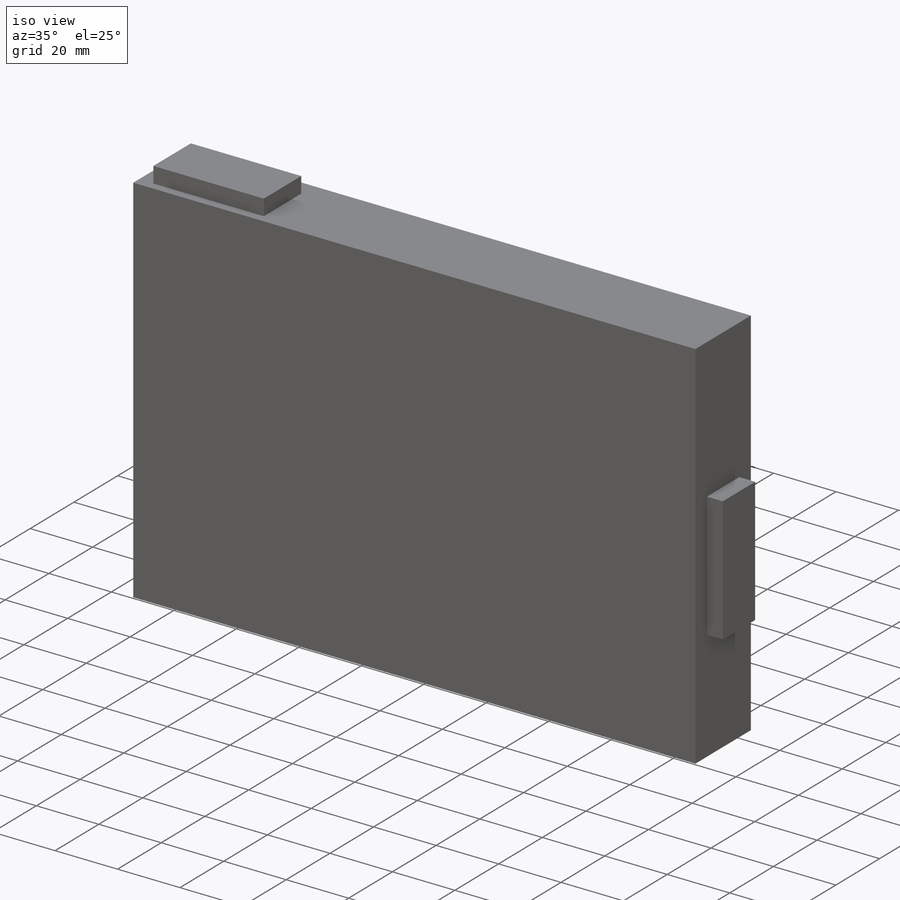
[diagram: iso view]
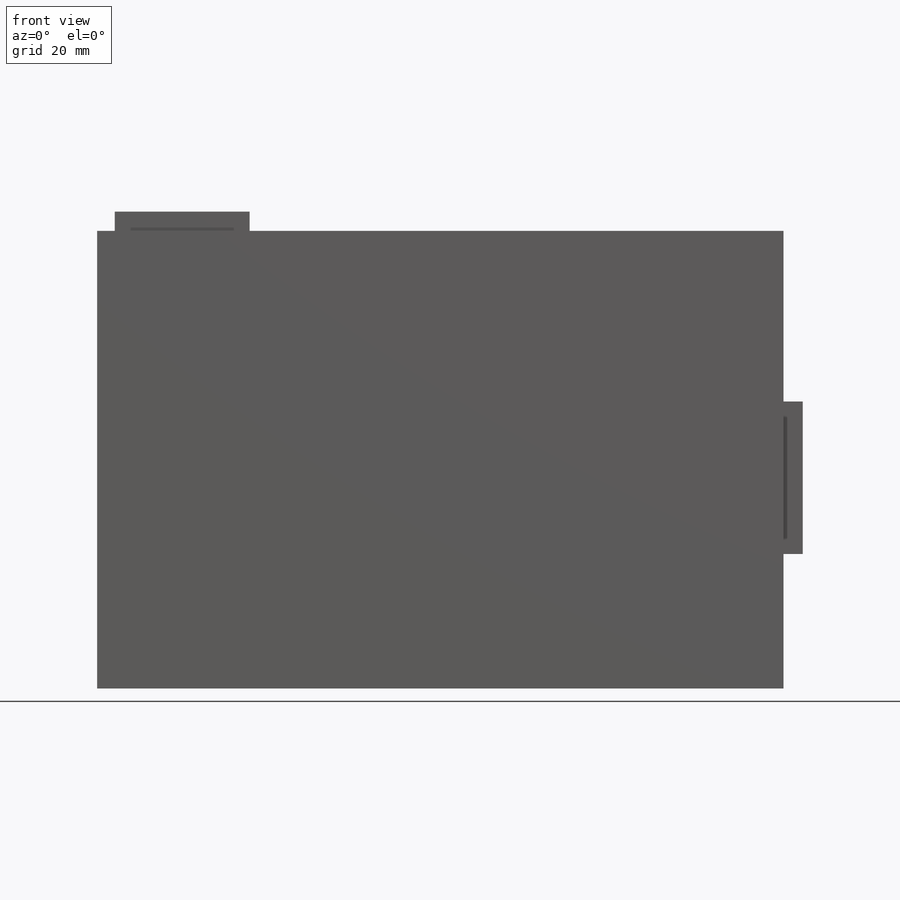
[diagram: front view]
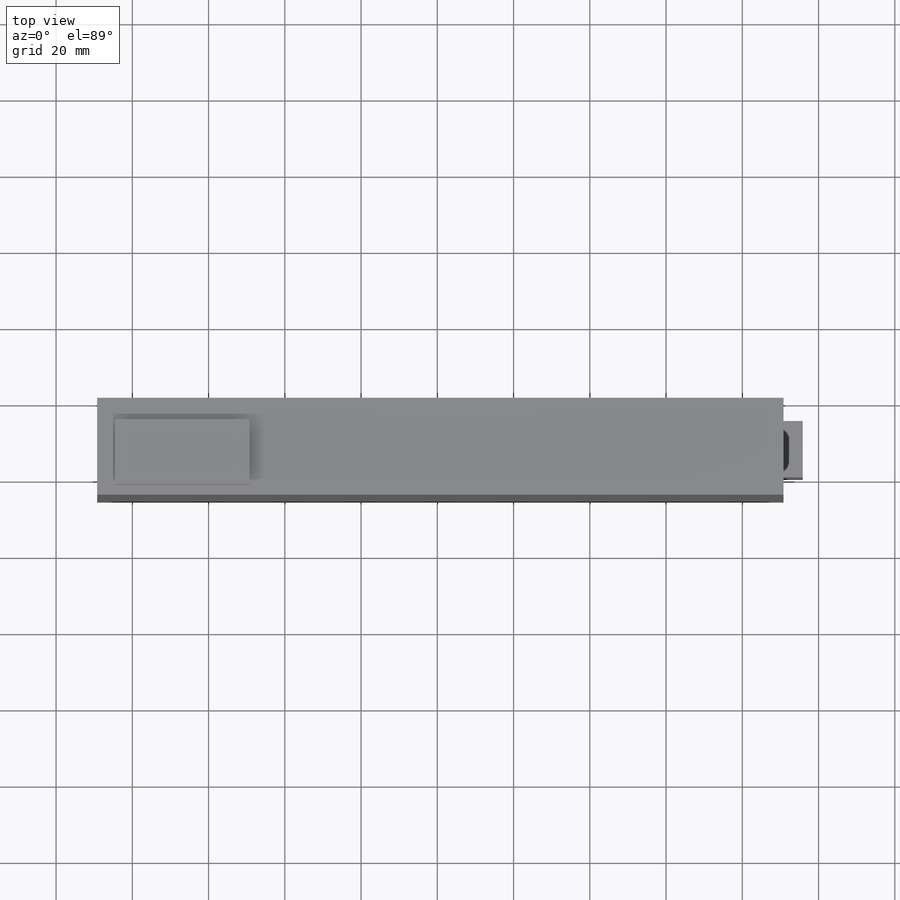
[diagram: top view]
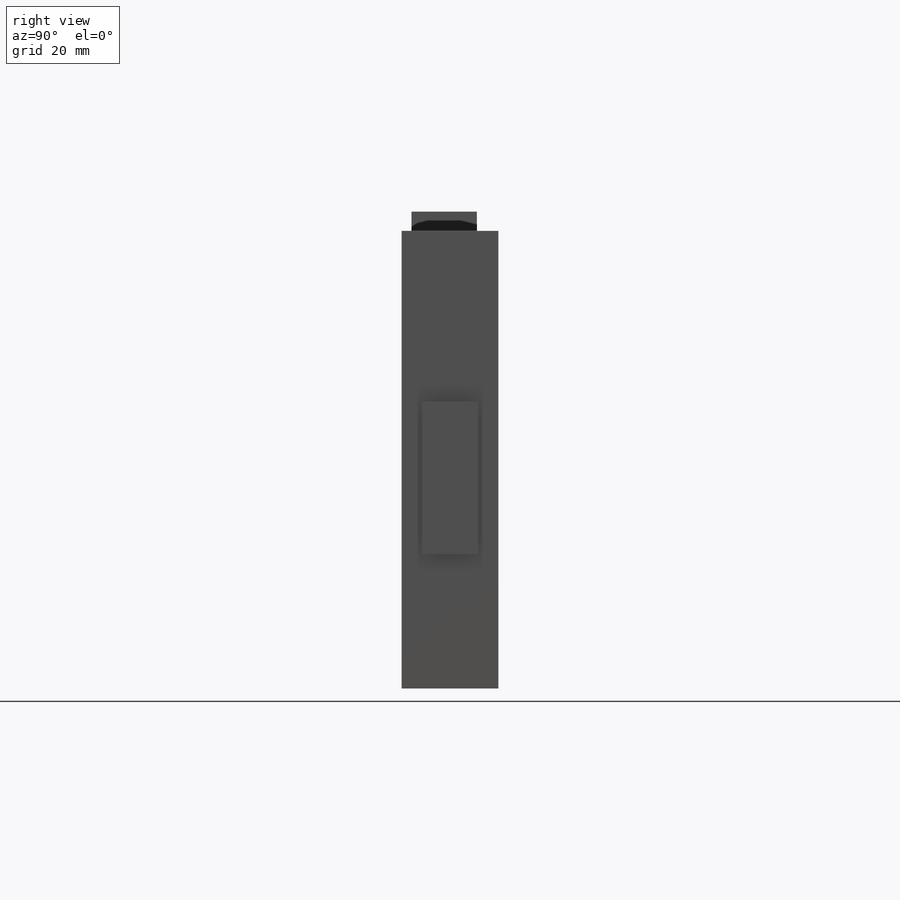
[diagram: right view]
SOLIDWORKS PART (.sldprt)
format: sldprt  version: not decoded by parser v0  size: 159,744 bytes
history: native  units: mm
features: sketch x6, extrude x3, cut_extrude x3, material x1 (+11 scaffold rows collapsed)
feature tree (24):
  scaffold x11  (default folders/planes/origin — collapsed)
  material  "Material <not specified>"
  sketch  "Sketch1"  dims[D1=180.0mm]
  extrude  "Boss-Extrude2"  Depth=25.4mm
  sketch  "Sketch2"  dims[D1=165.0mm]
  cut_extrude  "Cut-Extrude2"  Depth=25.4mm
  sketch  "Sketch3"
  cut_extrude  "Cut-Extrude3"  Depth=25.4mm
  sketch  "Sketch4"  dims[D1=40.0mm]
  cut_extrude  "Cut-Extrude4"  Depth=25.4mm
  extrude  "Boss-Extrude3"  [1 undecoded]
  sketch  "Sketch3<2>"  dims[D1=5.08mm]
  extrude  "Boss-Extrude4"  [1 undecoded]
  sketch  "Sketch4<2>"  dims[D1=5.08mm]
decode coverage: 9 of 12 modeling features carry decoded parameters
note: 2 parameter values undecoded
note: suppression state not decoded; provenance and decode notes live in map.json
